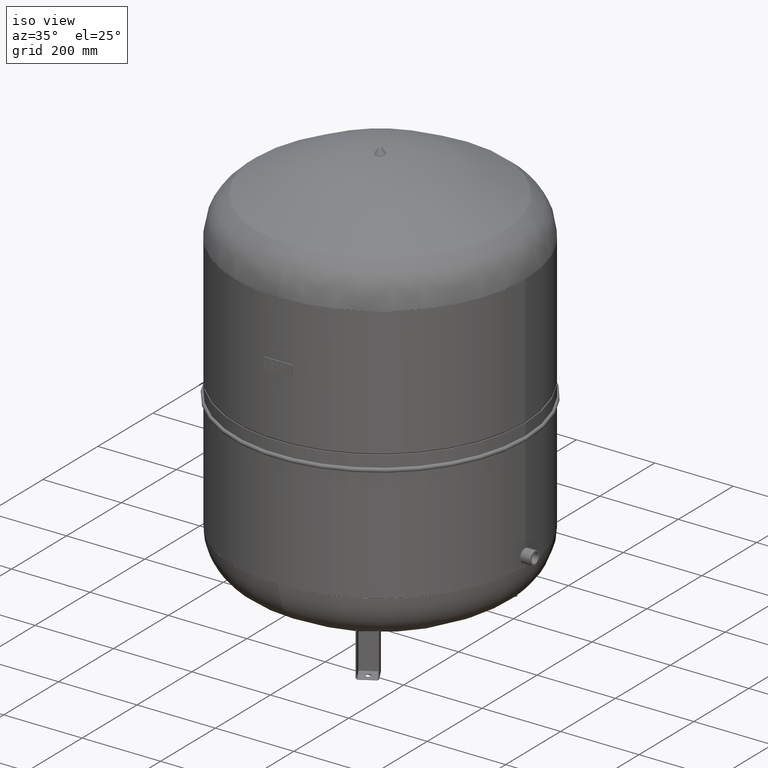
[diagram: clean part render]
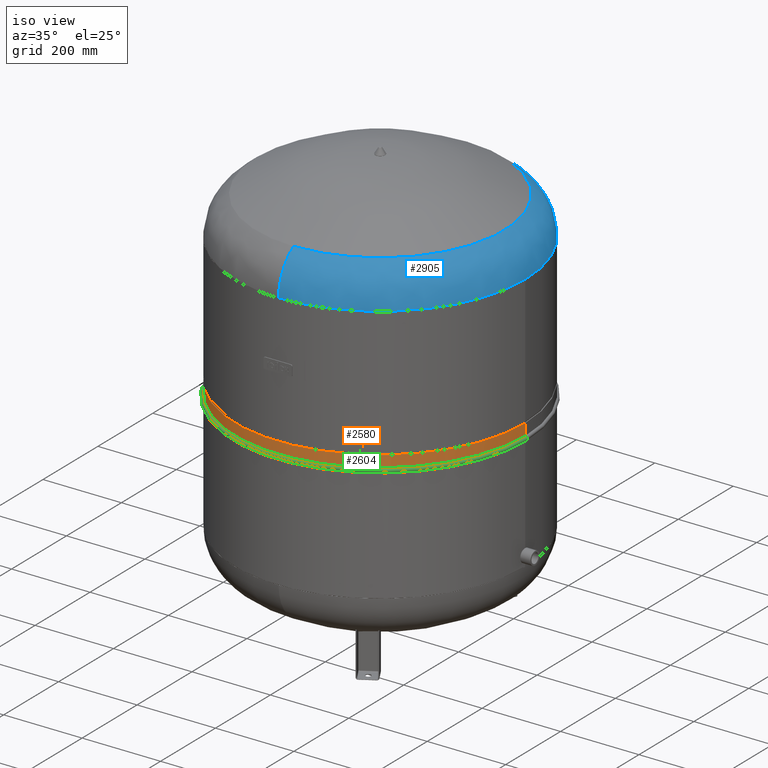
[diagram: same view with three faces highlighted in distinct colors, each labeled with its STEP entity id]
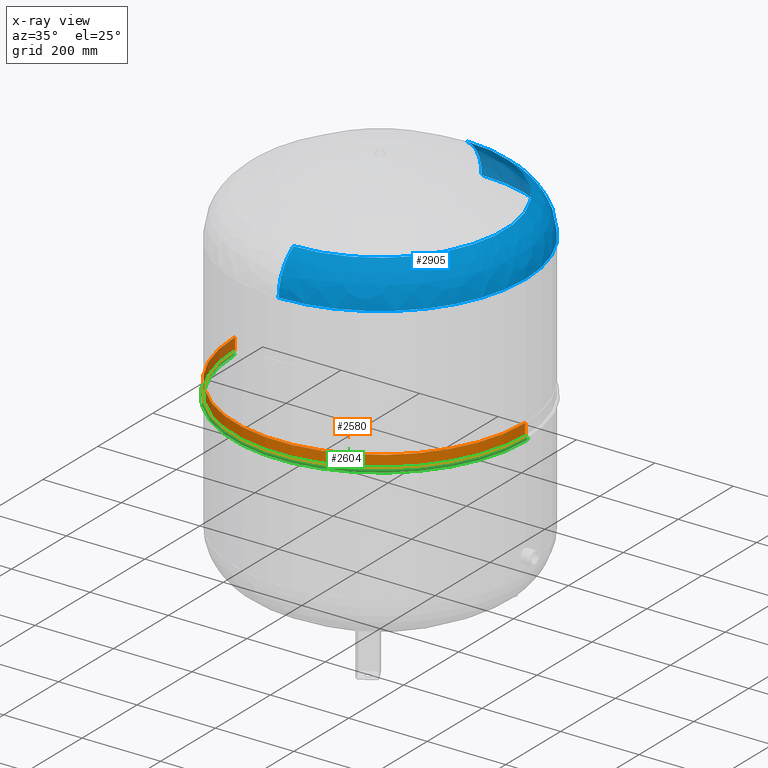
[diagram: x-ray of the same camera — body ghosted, the three highlighted faces saturated]
A machine part, iso view with three faces highlighted in distinct colors.
The next image is the same camera in x-ray (body ghosted, the three faces saturated) — at least one of them is partly hidden behind the body in this view.
Their STEP definitions:

[orange] entity #2580 — the highlighted cylindrical surface (partial cylindrical patch) has radius 370 mm, axis along (0, 0, 1).
#2539=CARTESIAN_POINT('',(-7.563334E-016,0.0,535.224999999999910));
#2540=DIRECTION('',(5.119008E-017,0.0,1.0));
#2541=DIRECTION('',(1.0,0.0,0.0));
#2542=AXIS2_PLACEMENT_3D('',#2539,#2540,#2541);
#2543=CYLINDRICAL_SURFACE('',#2542,369.999999999999770);
#2544=CARTESIAN_POINT('',(369.999999999999770,0.0,550.0));
#2545=VERTEX_POINT('',#2544);
#2546=CARTESIAN_POINT('',(369.999999999999770,0.0,520.449999999999930));
#2547=VERTEX_POINT('',#2546);
#2548=CARTESIAN_POINT('',(369.999999999999770,0.0,550.0));
#2549=DIRECTION('',(0.0,0.0,-1.0));
#2550=VECTOR('',#2549,29.550000000000068);
#2551=LINE('',#2548,#2550);
#2552=EDGE_CURVE('',#2545,#2547,#2551,.T.);
#2553=ORIENTED_EDGE('',*,*,#2552,.F.);
#2554=CARTESIAN_POINT('',(-369.999999999999770,-4.531044E-014,550.0));
#2555=VERTEX_POINT('',#2554);
#2556=CARTESIAN_POINT('',(0.0,0.0,550.0));
#2557=DIRECTION('',(0.0,0.0,1.0));
#2558=DIRECTION('',(1.0,0.0,0.0));
#2559=AXIS2_PLACEMENT_3D('',#2556,#2557,#2558);
#2560=CIRCLE('',#2559,369.999999999999770);
#2561=EDGE_CURVE('',#2555,#2545,#2560,.T.);
#2562=ORIENTED_EDGE('',*,*,#2561,.F.);
#2563=CARTESIAN_POINT('',(-369.999999999999770,-4.531044E-014,520.449999999999930));
#2564=VERTEX_POINT('',#2563);
#2565=CARTESIAN_POINT('',(-369.999999999999770,-4.531044E-014,550.0));
#2566=DIRECTION('',(0.0,0.0,-1.0));
#2567=VECTOR('',#2566,29.550000000000068);
#2568=LINE('',#2565,#2567);
#2569=EDGE_CURVE('',#2555,#2564,#2568,.T.);
#2570=ORIENTED_EDGE('',*,*,#2569,.T.);
#2571=CARTESIAN_POINT('',(-1.512667E-015,0.0,520.449999999999930));
#2572=DIRECTION('',(0.0,0.0,1.0));
#2573=DIRECTION('',(1.0,0.0,0.0));
#2574=AXIS2_PLACEMENT_3D('',#2571,#2572,#2573);
#2575=CIRCLE('',#2574,369.999999999999770);
#2576=EDGE_CURVE('',#2564,#2547,#2575,.T.);
#2577=ORIENTED_EDGE('',*,*,#2576,.T.);
#2578=EDGE_LOOP('',(#2553,#2562,#2570,#2577));
#2579=FACE_OUTER_BOUND('',#2578,.T.);
#2580=ADVANCED_FACE('',(#2579),#2543,.T.);

[blue] entity #2905 — the highlighted face is a freeform B-spline surface patch.
#2788=CARTESIAN_POINT('',(370.0,1.062956E-014,881.206120388130440));
#2789=VERTEX_POINT('',#2788);
#2796=CARTESIAN_POINT('',(0.0,-370.000000000000060,881.206120388130670));
#2797=VERTEX_POINT('',#2796);
#2798=CARTESIAN_POINT('',(0.0,-3.468087E-014,881.206120388130440));
#2799=DIRECTION('',(0.0,0.0,1.0));
#2800=DIRECTION('',(-1.0,0.0,0.0));
#2801=AXIS2_PLACEMENT_3D('',#2798,#2799,#2800);
#2802=CIRCLE('',#2801,370.0);
#2803=EDGE_CURVE('',#2797,#2789,#2802,.T.);
#2815=CARTESIAN_POINT('',(-1.702203E-014,139.000000000000060,881.206120388129990));
#2816=CARTESIAN_POINT('',(-1.702203E-014,138.999999999999770,996.706120388130330));
#2817=CARTESIAN_POINT('',(-3.116623E-014,254.500000000000000,996.706120388130330));
#2818=CARTESIAN_POINT('',(-4.531044E-014,370.000000000000280,996.706120388130440));
#2819=CARTESIAN_POINT('',(-4.531044E-014,369.999999999999940,881.206120388129990));
#2820=CARTESIAN_POINT('',(-139.000000000000090,139.0,881.206120388129990));
#2821=CARTESIAN_POINT('',(-138.999999999999770,138.999999999999720,996.706120388130330));
#2822=CARTESIAN_POINT('',(-254.500000000000000,254.499999999999860,996.706120388130330));
#2823=CARTESIAN_POINT('',(-370.000000000000230,370.000000000000110,996.706120388130330));
#2824=CARTESIAN_POINT('',(-370.0,369.999999999999890,881.206120388129990));
#2825=CARTESIAN_POINT('',(-139.000000000000090,-5.170290E-014,881.206120388129990));
#2826=CARTESIAN_POINT('',(-138.999999999999770,-3.048590E-014,996.706120388130330));
#2827=CARTESIAN_POINT('',(-254.500000000000000,-4.463010E-014,996.706120388130330));
#2828=CARTESIAN_POINT('',(-370.000000000000280,-5.877430E-014,996.706120388130440));
#2829=CARTESIAN_POINT('',(-370.0,-7.999131E-014,881.206120388130100));
#2830=CARTESIAN_POINT('',(-139.000000000000030,-139.000000000000110,881.206120388129990));
#2831=CARTESIAN_POINT('',(-138.999999999999720,-138.999999999999770,996.706120388130330));
#2832=CARTESIAN_POINT('',(-254.499999999999910,-254.500000000000000,996.706120388130330));
#2833=CARTESIAN_POINT('',(-370.000000000000110,-370.000000000000230,996.706120388130560));
#2834=CARTESIAN_POINT('',(-369.999999999999890,-370.0,881.206120388130220));
#2835=CARTESIAN_POINT('',(1.702203E-014,-139.000000000000110,881.206120388129990));
#2836=CARTESIAN_POINT('',(1.702203E-014,-138.999999999999770,996.706120388130330));
#2837=CARTESIAN_POINT('',(3.116623E-014,-254.500000000000000,996.706120388130330));
#2838=CARTESIAN_POINT('',(4.531044E-014,-370.000000000000280,996.706120388130560));
#2839=CARTESIAN_POINT('',(4.531044E-014,-370.000000000000060,881.206120388130220));
#2840=CARTESIAN_POINT('',(139.000000000000090,-139.000000000000090,881.206120388129990));
#2841=CARTESIAN_POINT('',(138.999999999999770,-138.999999999999740,996.706120388130330));
#2842=CARTESIAN_POINT('',(254.500000000000000,-254.499999999999910,996.706120388130330));
#2843=CARTESIAN_POINT('',(370.000000000000230,-370.000000000000110,996.706120388130560));
#2844=CARTESIAN_POINT('',(370.0,-369.999999999999890,881.206120388130220));
#2845=CARTESIAN_POINT('',(139.000000000000090,-1.765884E-014,881.206120388129990));
#2846=CARTESIAN_POINT('',(138.999999999999770,3.558161E-015,996.706120388130330));
#2847=CARTESIAN_POINT('',(254.500000000000000,1.770236E-014,996.706120388130330));
#2848=CARTESIAN_POINT('',(370.000000000000280,3.184657E-014,996.706120388130440));
#2849=CARTESIAN_POINT('',(370.0,1.062956E-014,881.206120388130100));
#2850=CARTESIAN_POINT('',(139.000000000000030,139.000000000000030,881.206120388129990));
#2851=CARTESIAN_POINT('',(138.999999999999720,138.999999999999740,996.706120388130330));
#2852=CARTESIAN_POINT('',(254.499999999999910,254.500000000000000,996.706120388130330));
#2853=CARTESIAN_POINT('',(370.000000000000110,370.000000000000230,996.706120388130330));
#2854=CARTESIAN_POINT('',(369.999999999999890,369.999999999999890,881.206120388129990));
#2855=CARTESIAN_POINT('',(-1.702203E-014,139.000000000000060,881.206120388129990));
#2856=CARTESIAN_POINT('',(-1.702203E-014,138.999999999999770,996.706120388130330));
#2857=CARTESIAN_POINT('',(-3.116623E-014,254.500000000000000,996.706120388130330));
#2858=CARTESIAN_POINT('',(-4.531044E-014,370.000000000000280,996.706120388130440));
#2859=CARTESIAN_POINT('',(-4.531044E-014,369.999999999999940,881.206120388129990));
#2867=(BOUNDED_SURFACE()B_SPLINE_SURFACE(2,2,((#2815,#2820,#2825,#2830,#2835,#2840,#2845,#2850,#2855),(#2816,#2821,#2826,#2831,#2836,#2841,#2846,#2851,#2856),(#2817,#2822,#2827,#2832,#2837,#2842,#2847,#2852,#2857),(#2818,#2823,#2828,#2833,#2838,#2843,#2848,#2853,#2858),(#2819,#2824,#2829,#2834,#2839,#2844,#2849,#2854,#2859)),.UNSPECIFIED.,.F.,.T.,.U.)B_SPLINE_SURFACE_WITH_KNOTS((3,2,3),(3,2,2,2,3),(-3.141592653589796,-1.570796326794897,2.557070E-015),(0.0,1.570796326794897,3.141592653589793,4.712388980384690,6.283185307179586),.UNSPECIFIED.)GEOMETRIC_REPRESENTATION_ITEM()RATIONAL_B_SPLINE_SURFACE(((1.0,0.707106781186548,1.0,0.707106781186548,1.0,0.707106781186548,1.0,0.707106781186548,1.0),(0.707106781186547,0.500000000000000,0.707106781186547,0.500000000000000,0.707106781186547,0.500000000000000,0.707106781186547,0.500000000000000,0.707106781186547),(1.0,0.707106781186548,1.0,0.707106781186548,1.0,0.707106781186548,1.0,0.707106781186548,1.0),(0.707106781186544,0.499999999999998,0.707106781186544,0.499999999999998,0.707106781186544,0.499999999999998,0.707106781186544,0.499999999999998,0.707106781186544),(1.0,0.707106781186548,1.0,0.707106781186548,1.0,0.707106781186548,1.0,0.707106781186548,1.0)))REPRESENTATION_ITEM('')SURFACE());
#2868=CARTESIAN_POINT('',(0.0,-315.931034482758610,979.014494274920590));
#2869=VERTEX_POINT('',#2868);
#2870=CARTESIAN_POINT('',(0.0,-254.500000000000060,881.206120388130560));
#2871=DIRECTION('',(-1.0,0.0,0.0));
#2872=DIRECTION('',(0.0,-1.0,0.0));
#2873=AXIS2_PLACEMENT_3D('',#2870,#2871,#2872);
#2874=CIRCLE('',#2873,115.500000000000000);
#2875=EDGE_CURVE('',#2797,#2869,#2874,.T.);
#2876=ORIENTED_EDGE('',*,*,#2875,.F.);
#2877=ORIENTED_EDGE('',*,*,#2803,.T.);
#2878=CARTESIAN_POINT('',(-4.531044E-014,369.999999999999940,881.206120388130220));
#2879=VERTEX_POINT('',#2878);
#2880=CARTESIAN_POINT('',(0.0,-3.468087E-014,881.206120388130440));
#2881=DIRECTION('',(0.0,0.0,1.0));
#2882=DIRECTION('',(-1.0,0.0,0.0));
#2883=AXIS2_PLACEMENT_3D('',#2880,#2881,#2882);
#2884=CIRCLE('',#2883,370.0);
#2885=EDGE_CURVE('',#2789,#2879,#2884,.T.);
#2886=ORIENTED_EDGE('',*,*,#2885,.T.);
#2887=CARTESIAN_POINT('',(-3.868912E-014,315.931034482758610,979.014494274920370));
#2888=VERTEX_POINT('',#2887);
#2889=CARTESIAN_POINT('',(-3.116623E-014,254.500000000000000,881.206120388130330));
#2890=DIRECTION('',(1.0,0.0,0.0));
#2891=DIRECTION('',(0.0,1.0,0.0));
#2892=AXIS2_PLACEMENT_3D('',#2889,#2890,#2891);
#2893=CIRCLE('',#2892,115.500000000000000);
#2894=EDGE_CURVE('',#2879,#2888,#2893,.T.);
#2895=ORIENTED_EDGE('',*,*,#2894,.T.);
#2896=CARTESIAN_POINT('',(0.0,-1.671377E-014,979.014494274920480));
#2897=DIRECTION('',(0.0,0.0,1.0));
#2898=DIRECTION('',(-1.0,0.0,0.0));
#2899=AXIS2_PLACEMENT_3D('',#2896,#2897,#2898);
#2900=CIRCLE('',#2899,315.931034482758610);
#2901=EDGE_CURVE('',#2869,#2888,#2900,.T.);
#2902=ORIENTED_EDGE('',*,*,#2901,.F.);
#2903=EDGE_LOOP('',(#2876,#2877,#2886,#2895,#2902));
#2904=FACE_OUTER_BOUND('',#2903,.T.);
#2905=ADVANCED_FACE('',(#2904),#2867,.T.);

[green] entity #2604 — the highlighted toroidal blend (fillet) surface has major radius 370 mm and minor (blend) radius 5.45 mm.
#2428=CARTESIAN_POINT('',(370.000000000000060,0.0,509.549999999999950));
#2429=VERTEX_POINT('',#2428);
#2438=CARTESIAN_POINT('',(-370.000000000000060,-4.531044E-014,509.549999999999950));
#2439=VERTEX_POINT('',#2438);
#2440=CARTESIAN_POINT('',(-2.070639E-015,0.0,509.549999999999950));
#2441=DIRECTION('',(0.0,0.0,1.0));
#2442=DIRECTION('',(1.0,0.0,0.0));
#2443=AXIS2_PLACEMENT_3D('',#2440,#2441,#2442);
#2444=CIRCLE('',#2443,370.000000000000060);
#2445=EDGE_CURVE('',#2439,#2429,#2444,.T.);
#2546=CARTESIAN_POINT('',(369.999999999999770,0.0,520.449999999999930));
#2547=VERTEX_POINT('',#2546);
#2563=CARTESIAN_POINT('',(-369.999999999999770,-4.531044E-014,520.449999999999930));
#2564=VERTEX_POINT('',#2563);
#2571=CARTESIAN_POINT('',(-1.512667E-015,0.0,520.449999999999930));
#2572=DIRECTION('',(0.0,0.0,1.0));
#2573=DIRECTION('',(1.0,0.0,0.0));
#2574=AXIS2_PLACEMENT_3D('',#2571,#2572,#2573);
#2575=CIRCLE('',#2574,369.999999999999770);
#2576=EDGE_CURVE('',#2564,#2547,#2575,.T.);
#2581=CARTESIAN_POINT('',(0.0,0.0,515.0));
#2582=DIRECTION('',(5.119008E-017,0.0,1.0));
#2583=DIRECTION('',(1.0,0.0,0.0));
#2584=AXIS2_PLACEMENT_3D('',#2581,#2582,#2583);
#2585=TOROIDAL_SURFACE('',#2584,369.999999999999940,5.449999999999999);
#2586=CARTESIAN_POINT('',(369.999999999999940,0.0,515.0));
#2587=DIRECTION('',(0.0,1.0,0.0));
#2588=DIRECTION('',(1.0,0.0,0.0));
#2589=AXIS2_PLACEMENT_3D('',#2586,#2587,#2588);
#2590=CIRCLE('',#2589,5.449999999999999);
#2591=EDGE_CURVE('',#2547,#2429,#2590,.T.);
#2592=ORIENTED_EDGE('',*,*,#2591,.F.);
#2593=ORIENTED_EDGE('',*,*,#2576,.F.);
#2594=CARTESIAN_POINT('',(-369.999999999999940,-4.531044E-014,515.0));
#2595=DIRECTION('',(0.0,-1.0,0.0));
#2596=DIRECTION('',(-1.0,0.0,0.0));
#2597=AXIS2_PLACEMENT_3D('',#2594,#2595,#2596);
#2598=CIRCLE('',#2597,5.449999999999999);
#2599=EDGE_CURVE('',#2564,#2439,#2598,.T.);
#2600=ORIENTED_EDGE('',*,*,#2599,.T.);
#2601=ORIENTED_EDGE('',*,*,#2445,.T.);
#2602=EDGE_LOOP('',(#2592,#2593,#2600,#2601));
#2603=FACE_OUTER_BOUND('',#2602,.T.);
#2604=ADVANCED_FACE('',(#2603),#2585,.T.);